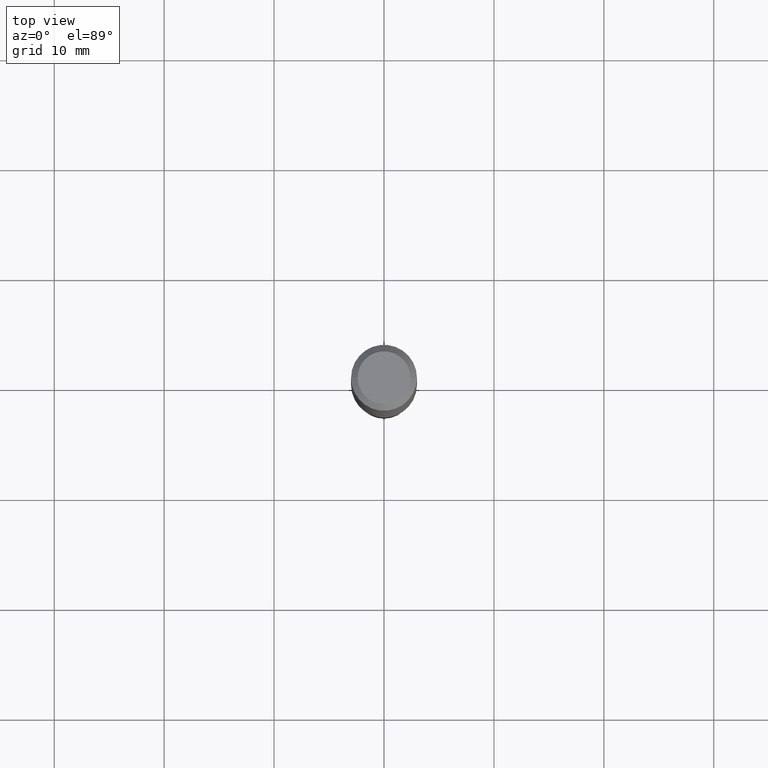
[diagram: clean part render]
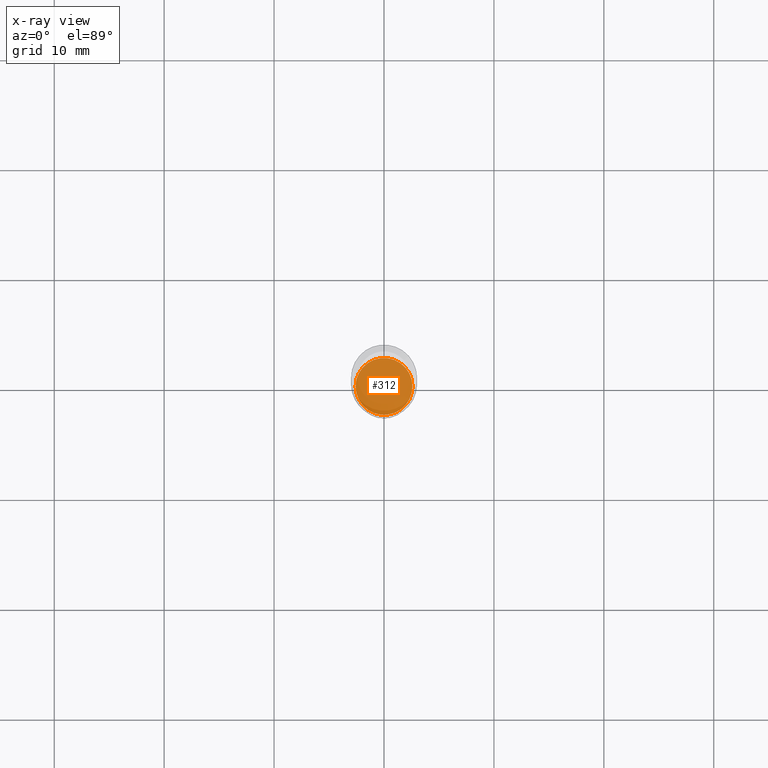
[diagram: x-ray — body ghosted, one internal face saturated and labeled with its STEP entity id]
A machine part, top view, then the same camera in x-ray: the body is ghosted and one INTERNAL B-rep face — a face not visible from any outside direction — is saturated and labeled: STEP entity #312.
In plain terms, the highlighted planar face has unit normal (-0, 0, 1).
Its self-contained STEP definition (entity closure, byte-faithful):
#11 = CIRCLE ( 'NONE', #223, 0.1018499999999999961 ) ;
#19 = DIRECTION ( 'NONE',  ( -2.445468806185136597E-29, 3.491481338843145583E-15, 1.000000000000000000 ) ) ;
#54 = EDGE_LOOP ( 'NONE', ( #280, #146 ) ) ;
#55 = EDGE_CURVE ( 'NONE', #255, #321, #152, .T. ) ;
#113 = CARTESIAN_POINT ( 'NONE',  ( 0.1018499999999999961, -7.034287453367281792E-15, -1.810999999999999943 ) ) ;
#132 = FACE_OUTER_BOUND ( 'NONE', #54, .T. ) ;
#146 = ORIENTED_EDGE ( 'NONE', *, *, #55, .F. ) ;
#152 = CIRCLE ( 'NONE', #230, 0.1018499999999999961 ) ;
#161 = DIRECTION ( 'NONE',  ( 1.000000000000000000, -6.982962677686265922E-15, 0.000000000000000000 ) ) ;
#165 = PLANE ( 'NONE',  #260 ) ;
#198 = DIRECTION ( 'NONE',  ( 1.000000000000000000, -6.982962677686265922E-15, 0.000000000000000000 ) ) ;
#206 = DIRECTION ( 'NONE',  ( -2.445468806185136597E-29, 3.491481338843145583E-15, 1.000000000000000000 ) ) ;
#223 = AXIS2_PLACEMENT_3D ( 'NONE', #395, #206, #161 ) ;
#230 = AXIS2_PLACEMENT_3D ( 'NONE', #238, #19, #198 ) ;
#238 = CARTESIAN_POINT ( 'NONE',  ( 4.428744008001282238E-29, -6.323072704644935995E-15, -1.810999999999999943 ) ) ;
#255 = VERTEX_POINT ( 'NONE', #338 ) ;
#260 = AXIS2_PLACEMENT_3D ( 'NONE', #435, #440, #364 ) ;
#280 = ORIENTED_EDGE ( 'NONE', *, *, #486, .F. ) ;
#312 = ADVANCED_FACE ( 'NONE', ( #132 ), #165, .F. ) ;
#321 = VERTEX_POINT ( 'NONE', #113 ) ;
#338 = CARTESIAN_POINT ( 'NONE',  ( -0.1018499999999999961, -5.596735701099162782E-15, -1.810999999999999943 ) ) ;
#364 = DIRECTION ( 'NONE',  ( 1.000000000000000000, -6.982962677686265922E-15, 4.876176775795935793E-29 ) ) ;
#395 = CARTESIAN_POINT ( 'NONE',  ( 4.428744008001282238E-29, -6.323072704644935995E-15, -1.810999999999999943 ) ) ;
#435 = CARTESIAN_POINT ( 'NONE',  ( 4.428744008001282238E-29, -6.323072704644935995E-15, -1.810999999999999943 ) ) ;
#440 = DIRECTION ( 'NONE',  ( -2.438088387897960049E-29, 3.491481338843145188E-15, 1.000000000000000000 ) ) ;
#486 = EDGE_CURVE ( 'NONE', #321, #255, #11, .T. ) ;